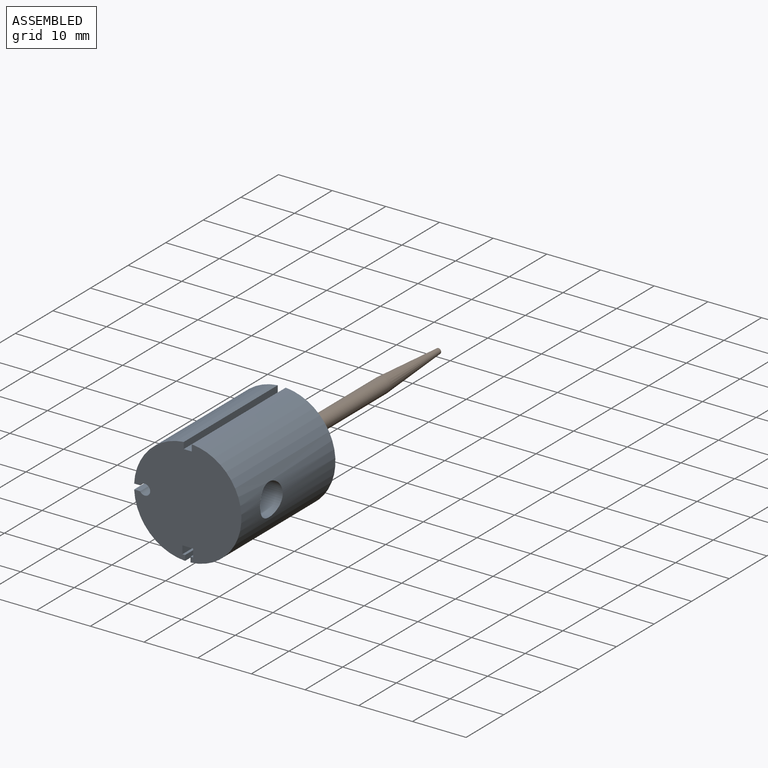
[diagram: assembled view]
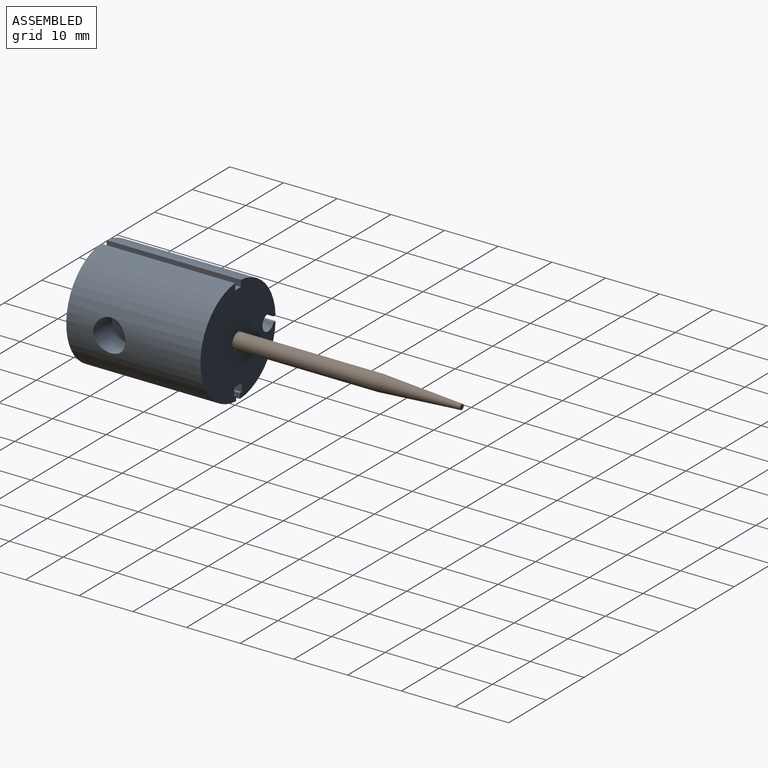
[diagram: assembled view, second angle]
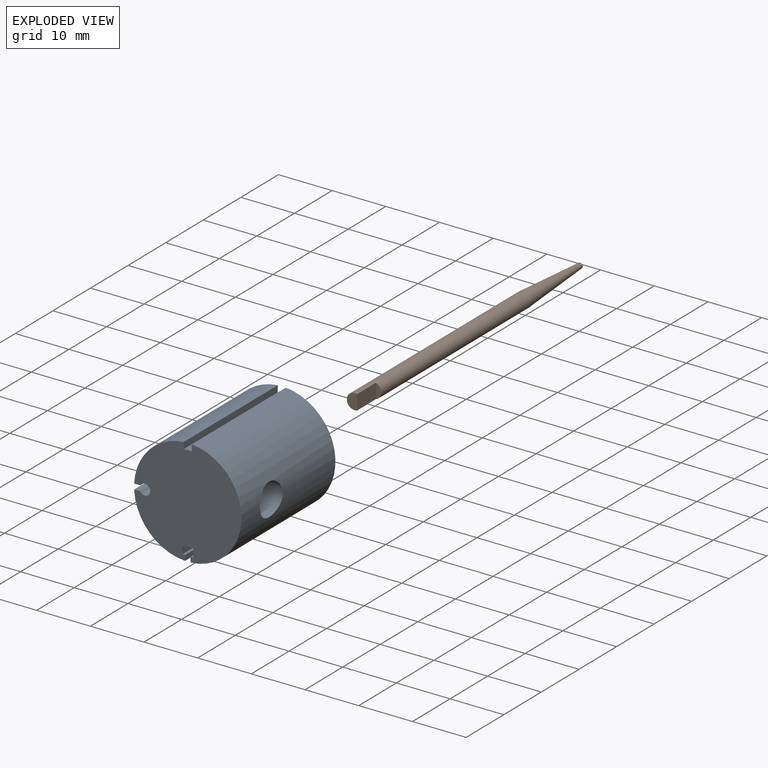
[diagram: exploded view]
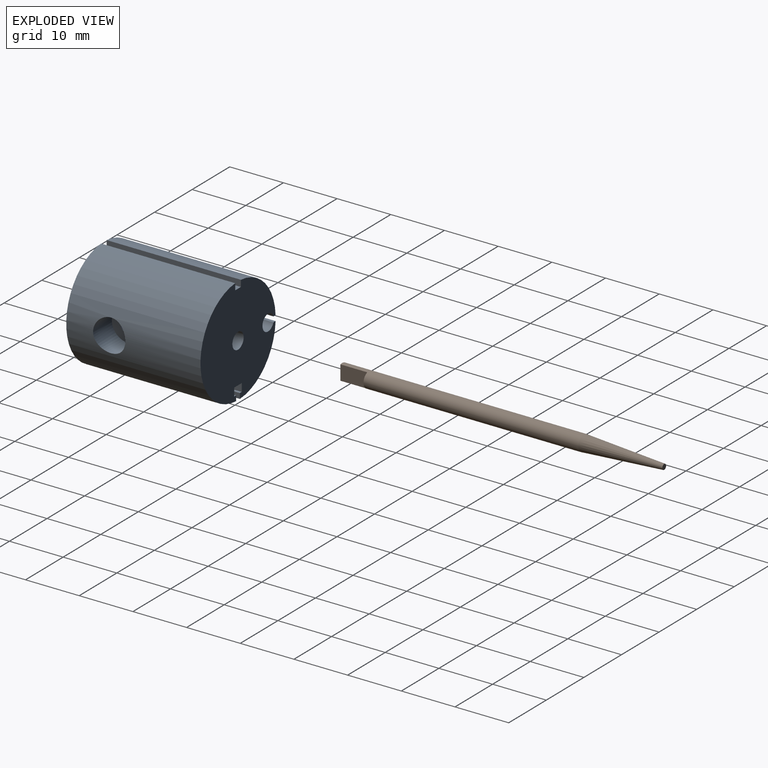
[diagram: exploded view, second angle]
ASSEMBLY  parts=2 mates=2
PART A: 25 faces, bbox 20x25x20 mm
  f0: cylinder r=1mm len=20mm, axis (0,1,0), area 104.7mm2, adj f4,f17,f18,f24
  f1: plane 19.99x19.96mm, normal (0,1,0), area 293.7mm2, adj f2,f3,f4,f5,f6,f7,f8,f9
  f2: cylinder r=1.5mm len=20mm, axis (0,1,0), area 179.5mm2, adj f1,f19,f22
  f3: cylinder r=10mm len=25mm, axis (0,1,0), area 725.5mm2, adj f1,f12,f13,f18,f20
  f4: plane 25x1.12mm, normal (-1,0,0), area 25.3mm2, adj f0,f1,f5,f18,f23,f24
  f5: cylinder r=10mm len=25mm, axis (0,1,0), area 367.7mm2, adj f1,f4,f6,f18
  f6: plane 25x0.99mm, normal (0,0,1), area 24.7mm2, adj f1,f5,f7,f18
  f7: plane 25x0.5mm, normal (-1,0,0), area 12.5mm2, adj f1,f6,f8,f18
  f8: plane 25x1.5mm, normal (0,0,1), area 37.5mm2, adj f1,f7,f9,f18
  f9: plane 25x2mm, normal (1,0,0), area 50mm2, adj f1,f8,f10,f18
  f10: plane 25x1.5mm, normal (0,0,-1), area 37.5mm2, adj f1,f9,f11,f18
  f11: plane 25x0.5mm, normal (-1,0,0), area 12.5mm2, adj f1,f10,f12,f18
  f12: plane 25x0.99mm, normal (0,0,-1), area 24.7mm2, adj f1,f3,f11,f18
  f13: plane 25x1.2mm, normal (0,0,-1), area 30mm2, adj f1,f3,f14,f18
  f14: plane 25x1.5mm, normal (-1,0,0), area 37.5mm2, adj f1,f13,f15,f18
  f15: plane 25x1.2mm, normal (0,0,1), area 30mm2, adj f1,f14,f16,f18
  f16: cylinder r=10mm len=25mm, axis (0,1,0), area 361.4mm2, adj f1,f15,f17,f18
  f17: plane 25x1.12mm, normal (1,0,0), area 25.3mm2, adj f0,f1,f16,f18,f23,f24
  f18: plane 19.99x19.96mm, normal (0,-1,0), area 304.2mm2, adj f0,f3,f4,f5,f6,f7,f8,f9
  f19: plane 3x3mm, normal (0,1,0), area 7.1mm2, adj f2
  f20: cylinder r=3mm len=6mm, axis (0,0,-1), area 89.9mm2, adj f3,f21
  f21: plane 6x6mm, normal (0,0,1), area 21.2mm2, adj f20,f22
  f22: cylinder r=1.5mm len=5mm, axis (0,0,1), area 38.1mm2, adj f2,f21
  f23: cylinder r=1.5mm len=5mm, axis (0,1,0), area 42mm2, adj f1,f4,f17,f24
  f24: plane 3x2.91mm, normal (0,1,0), area 3.4mm2, adj f0,f4,f17,f23
PART B: 6 faces, bbox 2.9x60x2.9 mm
  f0: cylinder r=1.45mm len=45mm, axis (0,-1,0), area 391.8mm2, adj f1,f3,f4,f5
  f1: plane 2.9x1.9mm, normal (0,-1,0), area 4.6mm2, adj f0,f4
  f2: plane 1x1mm, normal (0,1,0), area 0.8mm2, adj f3
  f3: cone r=1.45mm half-angle=3.6deg, axis (0,-1,0), area 92.1mm2, adj f0,f2
  f4: plane 5x2.76mm, normal (1,0,0), area 13.8mm2, adj f0,f1,f5
  f5: plane 2.76x1mm, normal (0,-1,0), area 2mm2, adj f0,f4
PLACE A rot(axis=(0,1,0),90deg) t=(-89.84,-49.31,-46.61)mm
PLACE B rot(axis=(0.95,-0.25,0.21),0deg) t=(-89.84,-67.63,-46.61)mm
MATE slider A.f2 <-> B.f0  axis (0,1,0) through (-89.84,-49.31,-46.61)mm
MATE parallel A.f20 <-> B.f4  axis (1,0,0) through (-84.84,-66.31,-46.61)mm
